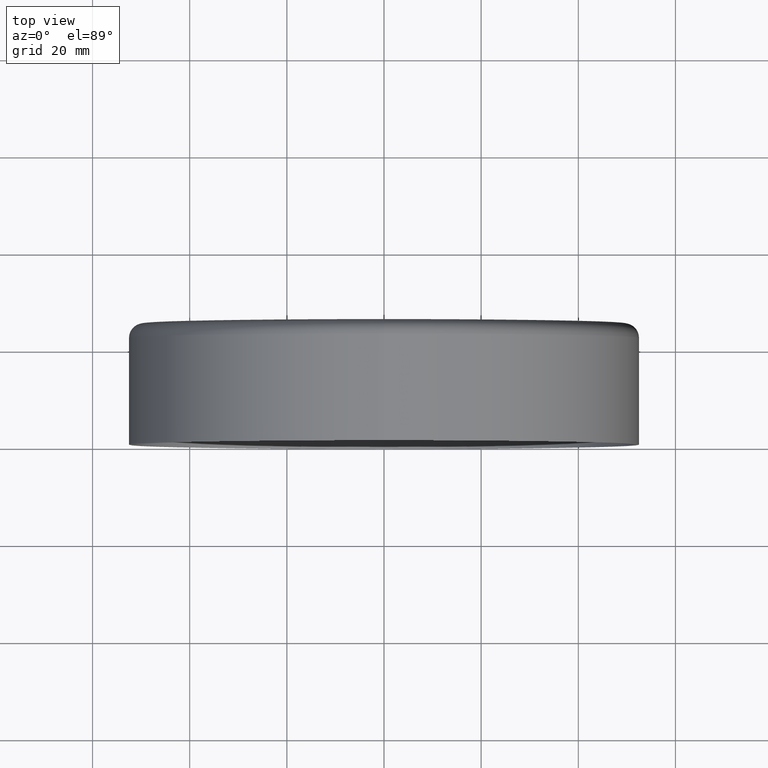
[diagram: clean part render]
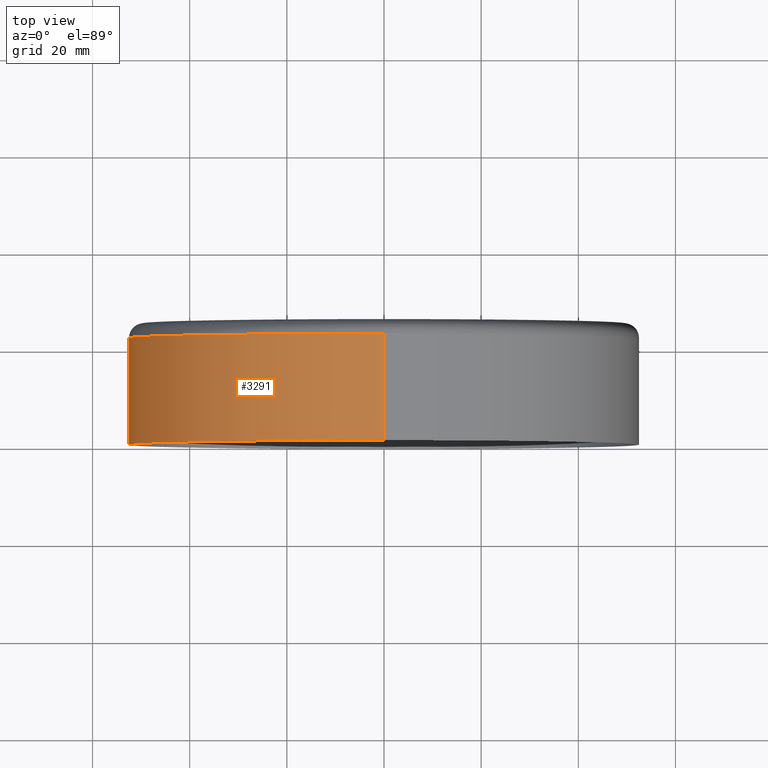
[diagram: same view with one face highlighted and labeled with its STEP entity id]
A machine part, top view. The second image highlights one B-rep face of the part: STEP entity #3291.
In plain terms, the highlighted cylindrical surface (partial cylindrical patch) has radius 52.5 mm, axis along (-0, -1, -0).
Its self-contained STEP definition (entity closure, byte-faithful):
#362 = CARTESIAN_POINT ( 'NONE',  ( 0.000000000000000000, 22.00000000000000355, -52.50000000000000711 ) ) ;
#571 = EDGE_CURVE ( 'NONE', #3590, #3637, #3994, .T. ) ;
#1678 = CARTESIAN_POINT ( 'NONE',  ( 0.000000000000000000, 22.00000000000000355, 0.000000000000000000 ) ) ;
#1881 = DIRECTION ( 'NONE',  ( 0.000000000000000000, 0.000000000000000000, -1.000000000000000000 ) ) ;
#2043 = CYLINDRICAL_SURFACE ( 'NONE', #8638, 52.50000000000000711 ) ;
#2417 = VERTEX_POINT ( 'NONE', #3681 ) ;
#2776 = DIRECTION ( 'NONE',  ( 0.000000000000000000, 0.000000000000000000, -1.000000000000000000 ) ) ;
#3096 = EDGE_LOOP ( 'NONE', ( #4953, #8335, #5506, #7652 ) ) ;
#3291 = ADVANCED_FACE ( 'NONE', ( #10415 ), #2043, .T. ) ;
#3590 = VERTEX_POINT ( 'NONE', #13162 ) ;
#3637 = VERTEX_POINT ( 'NONE', #5729 ) ;
#3681 = CARTESIAN_POINT ( 'NONE',  ( 6.429395695523604744E-15, 22.00000000000000355, 52.50000000000000711 ) ) ;
#3994 = CIRCLE ( 'NONE', #14021, 52.50000000000000711 ) ;
#4732 = LINE ( 'NONE', #13178, #5408 ) ;
#4953 = ORIENTED_EDGE ( 'NONE', *, *, #13461, .F. ) ;
#5255 = LINE ( 'NONE', #7678, #6795 ) ;
#5408 = VECTOR ( 'NONE', #5555, 1000.000000000000000 ) ;
#5506 = ORIENTED_EDGE ( 'NONE', *, *, #7109, .T. ) ;
#5555 = DIRECTION ( 'NONE',  ( -0.000000000000000000, -1.000000000000000000, -0.000000000000000000 ) ) ;
#5729 = CARTESIAN_POINT ( 'NONE',  ( 0.000000000000000000, 0.000000000000000000, -52.50000000000000711 ) ) ;
#6550 = VERTEX_POINT ( 'NONE', #362 ) ;
#6576 = CARTESIAN_POINT ( 'NONE',  ( 0.000000000000000000, 0.000000000000000000, 0.000000000000000000 ) ) ;
#6795 = VECTOR ( 'NONE', #14052, 1000.000000000000000 ) ;
#6907 = EDGE_CURVE ( 'NONE', #2417, #6550, #12409, .T. ) ;
#7109 = EDGE_CURVE ( 'NONE', #6550, #3637, #4732, .T. ) ;
#7652 = ORIENTED_EDGE ( 'NONE', *, *, #571, .F. ) ;
#7678 = CARTESIAN_POINT ( 'NONE',  ( 6.429395695523604744E-15, 0.000000000000000000, 52.50000000000000711 ) ) ;
#8335 = ORIENTED_EDGE ( 'NONE', *, *, #6907, .T. ) ;
#8638 = AXIS2_PLACEMENT_3D ( 'NONE', #6576, #8901, #13429 ) ;
#8901 = DIRECTION ( 'NONE',  ( -0.000000000000000000, -1.000000000000000000, -0.000000000000000000 ) ) ;
#10415 = FACE_OUTER_BOUND ( 'NONE', #3096, .T. ) ;
#10504 = CARTESIAN_POINT ( 'NONE',  ( 0.000000000000000000, 0.000000000000000000, 0.000000000000000000 ) ) ;
#10657 = AXIS2_PLACEMENT_3D ( 'NONE', #1678, #12686, #2776 ) ;
#12409 = CIRCLE ( 'NONE', #10657, 52.50000000000000711 ) ;
#12686 = DIRECTION ( 'NONE',  ( -0.000000000000000000, -1.000000000000000000, -0.000000000000000000 ) ) ;
#12799 = DIRECTION ( 'NONE',  ( -0.000000000000000000, -1.000000000000000000, -0.000000000000000000 ) ) ;
#13162 = CARTESIAN_POINT ( 'NONE',  ( 6.429395695523604744E-15, 0.000000000000000000, 52.50000000000000711 ) ) ;
#13178 = CARTESIAN_POINT ( 'NONE',  ( 0.000000000000000000, 0.000000000000000000, -52.50000000000000711 ) ) ;
#13429 = DIRECTION ( 'NONE',  ( 0.000000000000000000, 0.000000000000000000, -1.000000000000000000 ) ) ;
#13461 = EDGE_CURVE ( 'NONE', #2417, #3590, #5255, .T. ) ;
#14021 = AXIS2_PLACEMENT_3D ( 'NONE', #10504, #12799, #1881 ) ;
#14052 = DIRECTION ( 'NONE',  ( -0.000000000000000000, -1.000000000000000000, -0.000000000000000000 ) ) ;